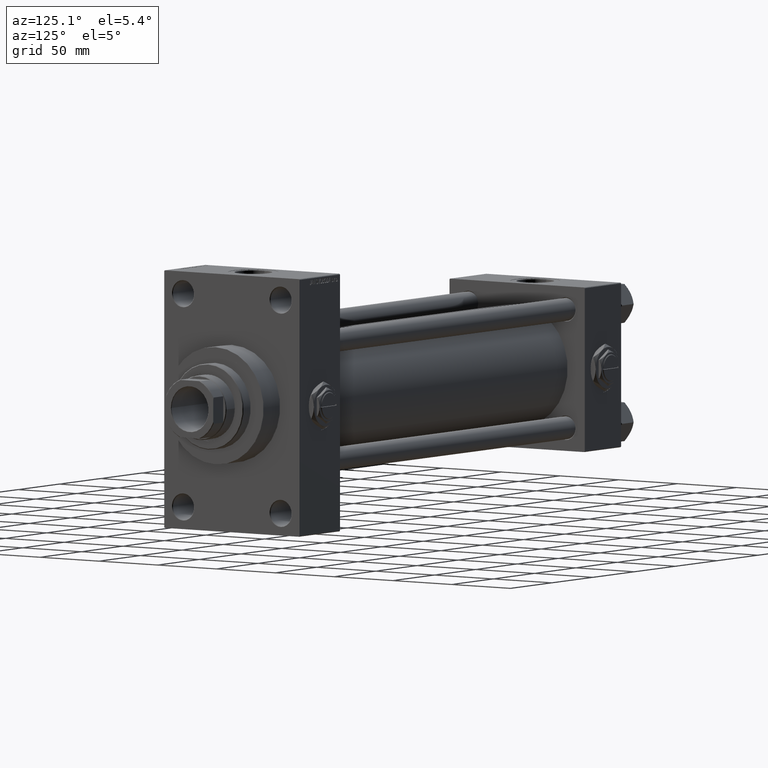
[diagram: clean part render]
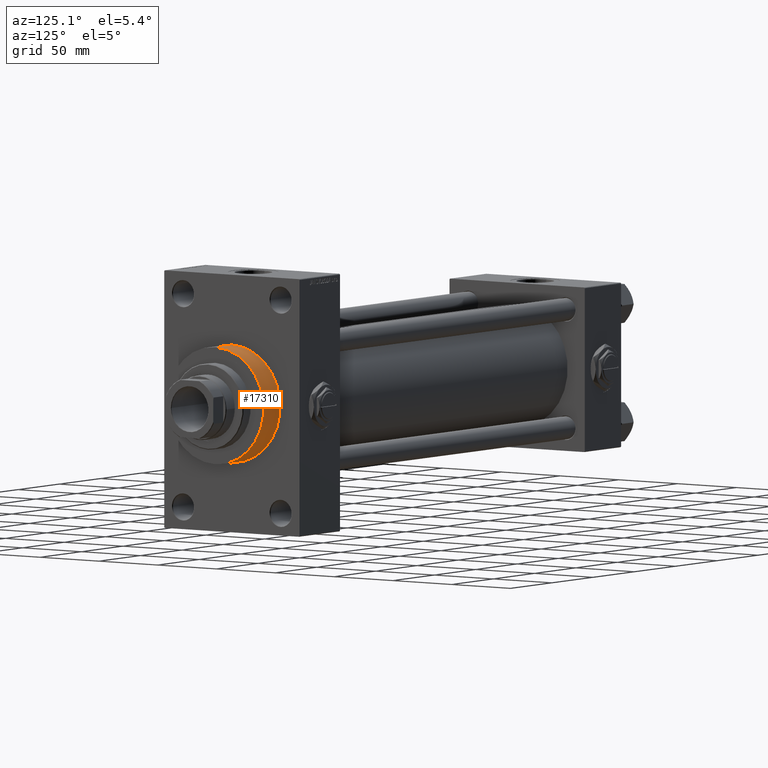
[diagram: same view with one face highlighted and labeled with its STEP entity id]
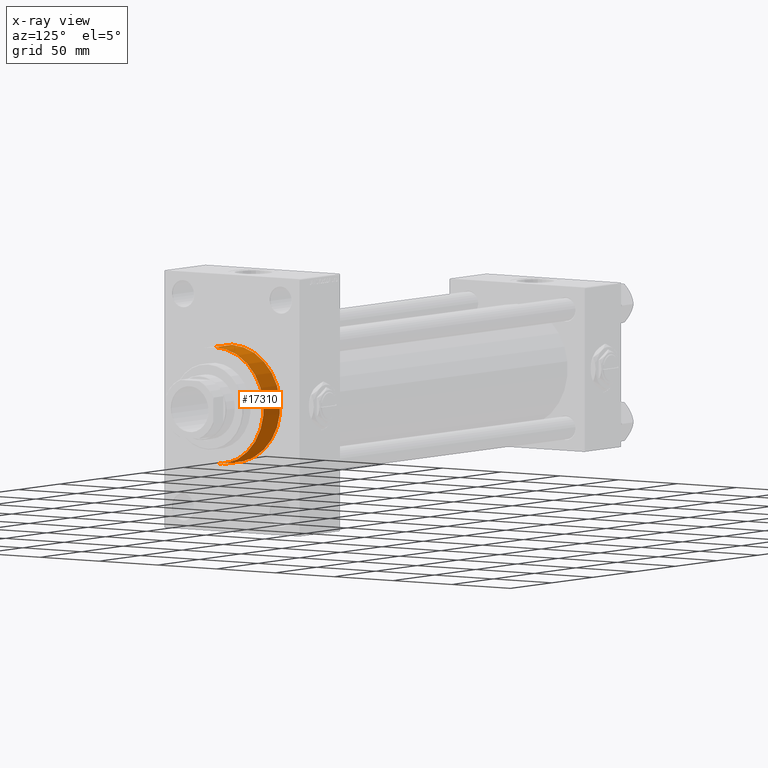
[diagram: x-ray of the same camera — body ghosted, the highlighted face saturated]
A machine part, auxiliary view. The second image highlights one B-rep face of the part: STEP entity #17310.
The next image is the same camera in x-ray: the body ghosted, the highlighted face saturated — about 0% of this face is hidden behind the body in this view.
In plain terms, the highlighted cylindrical surface (partial cylindrical patch) has radius 41 mm, axis along (-1, -0, -0).
Its self-contained STEP definition (entity closure, byte-faithful):
#1019 = CIRCLE ( 'NONE', #14726, 41.00000000000000000 ) ;
#1123 = DIRECTION ( 'NONE',  ( -1.000000000000000000, -0.000000000000000000, -0.000000000000000000 ) ) ;
#5311 = VECTOR ( 'NONE', #40412, 1000.000000000000000 ) ;
#6684 = CIRCLE ( 'NONE', #25173, 41.00000000000000000 ) ;
#7704 = EDGE_LOOP ( 'NONE', ( #48075, #18075, #15965, #33407 ) ) ;
#12389 = VERTEX_POINT ( 'NONE', #29275 ) ;
#14726 = AXIS2_PLACEMENT_3D ( 'NONE', #17861, #25649, #40996 ) ;
#15965 = ORIENTED_EDGE ( 'NONE', *, *, #42807, .T. ) ;
#16271 = DIRECTION ( 'NONE',  ( 0.000000000000000000, 0.000000000000000000, 1.000000000000000000 ) ) ;
#17310 = ADVANCED_FACE ( 'NONE', ( #20539 ), #35630, .T. ) ;
#17861 = CARTESIAN_POINT ( 'NONE',  ( 409.0000000000000000, 0.000000000000000000, 0.000000000000000000 ) ) ;
#18075 = ORIENTED_EDGE ( 'NONE', *, *, #26642, .T. ) ;
#19182 = VERTEX_POINT ( 'NONE', #47887 ) ;
#20539 = FACE_OUTER_BOUND ( 'NONE', #7704, .T. ) ;
#21240 = EDGE_CURVE ( 'NONE', #24760, #19182, #39907, .T. ) ;
#21291 = CARTESIAN_POINT ( 'NONE',  ( 409.0000000000000000, 0.000000000000000000, 41.00000000000000000 ) ) ;
#23369 = DIRECTION ( 'NONE',  ( 1.000000000000000000, 0.000000000000000000, 0.000000000000000000 ) ) ;
#24760 = VERTEX_POINT ( 'NONE', #29247 ) ;
#25173 = AXIS2_PLACEMENT_3D ( 'NONE', #34684, #23369, #38705 ) ;
#25649 = DIRECTION ( 'NONE',  ( 1.000000000000000000, 0.000000000000000000, 0.000000000000000000 ) ) ;
#26642 = EDGE_CURVE ( 'NONE', #12389, #46215, #29830, .T. ) ;
#28334 = CARTESIAN_POINT ( 'NONE',  ( 409.0000000000000000, 0.000000000000000000, 0.000000000000000000 ) ) ;
#28718 = VECTOR ( 'NONE', #41390, 1000.000000000000000 ) ;
#29247 = CARTESIAN_POINT ( 'NONE',  ( 409.0000000000000000, 0.000000000000000000, 41.00000000000000000 ) ) ;
#29275 = CARTESIAN_POINT ( 'NONE',  ( 409.0000000000000000, 5.021051876504148963E-15, -41.00000000000000000 ) ) ;
#29830 = LINE ( 'NONE', #40884, #28718 ) ;
#33292 = CARTESIAN_POINT ( 'NONE',  ( 388.9999999999999432, 5.021051876504148963E-15, -41.00000000000000000 ) ) ;
#33407 = ORIENTED_EDGE ( 'NONE', *, *, #21240, .F. ) ;
#34684 = CARTESIAN_POINT ( 'NONE',  ( 388.9999999999999432, 0.000000000000000000, 0.000000000000000000 ) ) ;
#35630 = CYLINDRICAL_SURFACE ( 'NONE', #45244, 41.00000000000000000 ) ;
#38705 = DIRECTION ( 'NONE',  ( 0.000000000000000000, 0.000000000000000000, -1.000000000000000000 ) ) ;
#39907 = LINE ( 'NONE', #21291, #5311 ) ;
#40412 = DIRECTION ( 'NONE',  ( -1.000000000000000000, -0.000000000000000000, -0.000000000000000000 ) ) ;
#40884 = CARTESIAN_POINT ( 'NONE',  ( 409.0000000000000000, 5.021051876504148963E-15, -41.00000000000000000 ) ) ;
#40996 = DIRECTION ( 'NONE',  ( 0.000000000000000000, 0.000000000000000000, -1.000000000000000000 ) ) ;
#41390 = DIRECTION ( 'NONE',  ( -1.000000000000000000, -0.000000000000000000, -0.000000000000000000 ) ) ;
#42687 = EDGE_CURVE ( 'NONE', #12389, #24760, #1019, .T. ) ;
#42807 = EDGE_CURVE ( 'NONE', #46215, #19182, #6684, .T. ) ;
#45244 = AXIS2_PLACEMENT_3D ( 'NONE', #28334, #1123, #16271 ) ;
#46215 = VERTEX_POINT ( 'NONE', #33292 ) ;
#47887 = CARTESIAN_POINT ( 'NONE',  ( 388.9999999999999432, 0.000000000000000000, 41.00000000000000000 ) ) ;
#48075 = ORIENTED_EDGE ( 'NONE', *, *, #42687, .F. ) ;